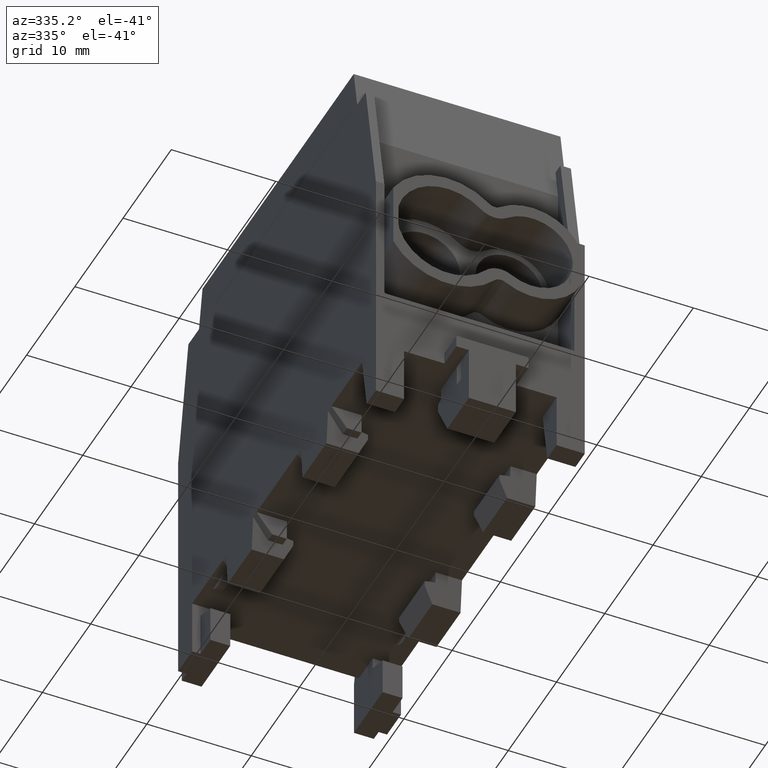
[diagram: clean part render]
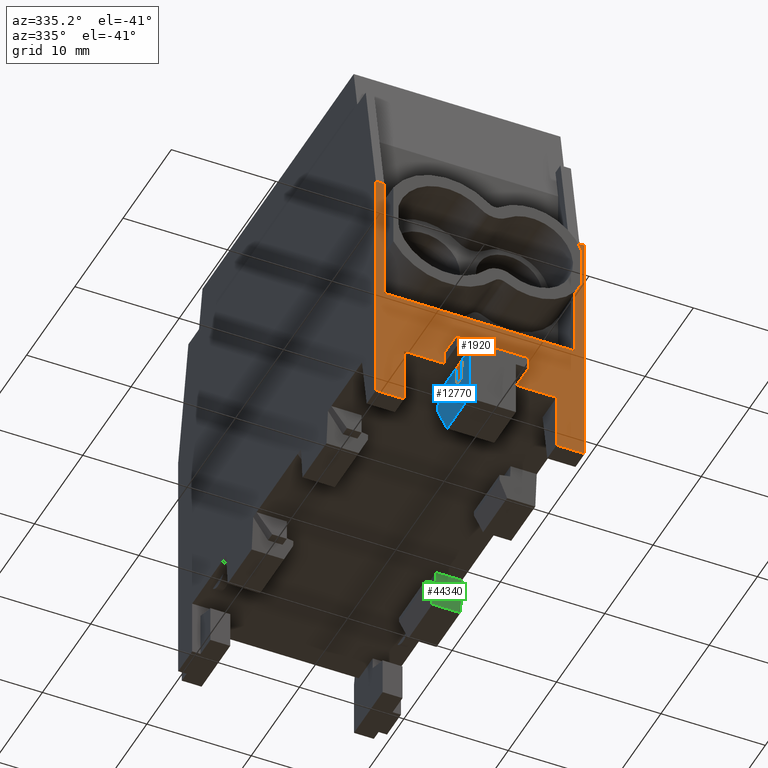
[diagram: same view with three faces highlighted in distinct colors, each labeled with its STEP entity id]
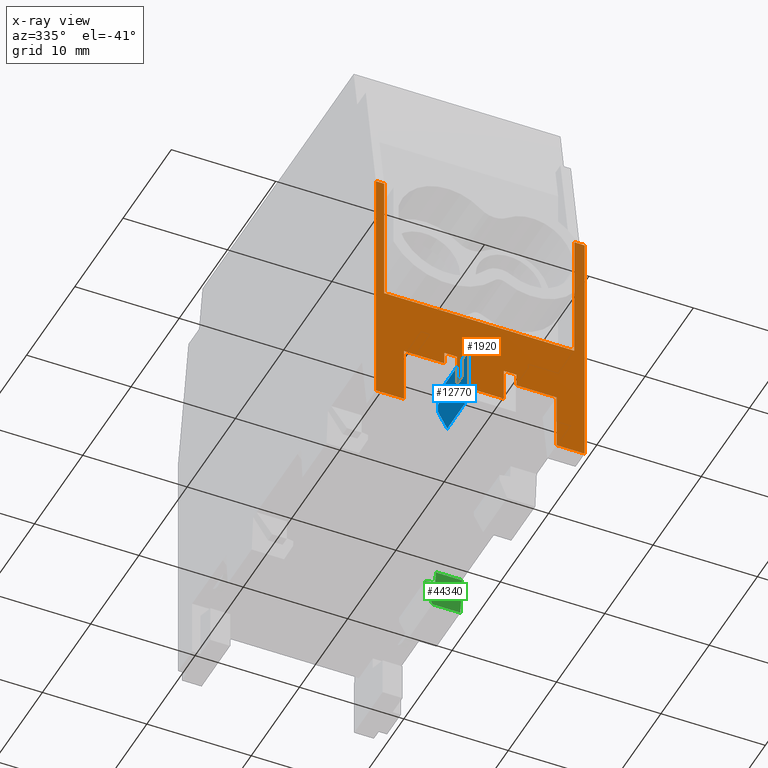
[diagram: x-ray of the same camera — body ghosted, the three highlighted faces saturated]
A machine part, auxiliary view with three faces highlighted in distinct colors.
The next image is the same camera in x-ray (body ghosted, the three faces saturated) — at least one of them is partly hidden behind the body in this view.
Their STEP definitions:

[orange] entity #1920 — the highlighted planar face has unit normal (0, 1, 0).
#10=CARTESIAN_POINT('',(-10.,-20.5,-27.645359338705));
#20=DIRECTION('',(3.24619032168768E-32,1.,3.03396758775072E-16));
#30=DIRECTION('',(5.55111512312577E-17,3.03396758775072E-16,-1.));
#40=AXIS2_PLACEMENT_3D('',#10,#20,#30);
#50=PLANE('',#40);
#60=CARTESIAN_POINT('',(8.99999999999999,-20.5,1.38539416379335E-15));
#70=DIRECTION('',(-5.55111512312577E-17,-3.03396758775072E-16,1.));
#80=VECTOR('',#70,1.);
#90=LINE('',#60,#80);
#100=CARTESIAN_POINT('',(8.99999999999999,-20.5,-23.2252583260273));
#110=VERTEX_POINT('',#100);
#120=CARTESIAN_POINT('',(8.99999999999999,-20.5,-19.2654603513827));
#130=VERTEX_POINT('',#120);
#140=EDGE_CURVE('',#110,#130,#90,.T.);
#150=ORIENTED_EDGE('',*,*,#140,.F.);
#160=CARTESIAN_POINT('',(9.,-20.5,1.38539416379335E-15));
#170=DIRECTION('',(5.55111512312577E-17,3.03396758775072E-16,-1.));
#180=VECTOR('',#170,1.);
#190=LINE('',#160,#180);
#200=CARTESIAN_POINT('',(9.,-20.5,-17.245359338705));
#210=VERTEX_POINT('',#200);
#220=EDGE_CURVE('',#210,#130,#190,.T.);
#230=ORIENTED_EDGE('',*,*,#220,.T.);
#240=CARTESIAN_POINT('',(9.57309750288235E-16,-20.5,-17.245359338705));
#250=DIRECTION('',(1.,-6.13422321364336E-32,9.51899718248728E-17));
#260=VECTOR('',#250,1.);
#270=LINE('',#240,#260);
#280=CARTESIAN_POINT('',(10.,-20.5,-17.245359338705));
#290=VERTEX_POINT('',#280);
#300=EDGE_CURVE('',#210,#290,#270,.T.);
#310=ORIENTED_EDGE('',*,*,#300,.F.);
#320=CARTESIAN_POINT('',(10.,-20.5,1.44090531502461E-15));
#330=DIRECTION('',(-5.55111512312577E-17,-3.03396758775072E-16,1.));
#340=VECTOR('',#330,1.);
#350=LINE('',#320,#340);
#360=CARTESIAN_POINT('',(10.,-20.5,-41.245359338705));
#370=VERTEX_POINT('',#360);
#380=EDGE_CURVE('',#370,#290,#350,.T.);
#390=ORIENTED_EDGE('',*,*,#380,.T.);
#400=CARTESIAN_POINT('',(2.28957737983842E-15,-20.5,-41.245359338705));
#410=DIRECTION('',(1.,-4.93038065763132E-32,5.55111512312577E-17));
#420=VECTOR('',#410,1.);
#430=LINE('',#400,#420);
#440=CARTESIAN_POINT('',(7.3,-20.5,-41.245359338705));
#450=VERTEX_POINT('',#440);
#460=EDGE_CURVE('',#450,#370,#430,.T.);
#470=ORIENTED_EDGE('',*,*,#460,.T.);
#480=CARTESIAN_POINT('',(7.3,-20.5,1.29102520670021E-15));
#490=DIRECTION('',(5.55111512312577E-17,3.03396758775072E-16,-1.));
#500=VECTOR('',#490,1.);
#510=LINE('',#480,#500);
#520=CARTESIAN_POINT('',(7.3,-20.5,-35.745359338705));
#530=VERTEX_POINT('',#520);
#540=EDGE_CURVE('',#530,#450,#510,.T.);
#550=ORIENTED_EDGE('',*,*,#540,.T.);
#560=CARTESIAN_POINT('',(1.9842660480665E-15,-20.5,-35.745359338705));
#570=DIRECTION('',(-1.,4.93038065763132E-32,-5.55111512312577E-17));
#580=VECTOR('',#570,1.);
#590=LINE('',#560,#580);
#600=CARTESIAN_POINT('',(3.45,-20.5,-35.745359338705));
#610=VERTEX_POINT('',#600);
#620=EDGE_CURVE('',#530,#610,#590,.T.);
#630=ORIENTED_EDGE('',*,*,#620,.F.);
#640=CARTESIAN_POINT('',(3.45,-20.5,1.07730727445987E-15));
#650=DIRECTION('',(5.55111512312577E-17,3.03396758775072E-16,-1.));
#660=VECTOR('',#650,1.);
#670=LINE('',#640,#660);
#680=CARTESIAN_POINT('',(3.45,-20.5,-34.545359338705));
#690=VERTEX_POINT('',#680);
#700=EDGE_CURVE('',#690,#610,#670,.T.);
#710=ORIENTED_EDGE('',*,*,#700,.T.);
#720=CARTESIAN_POINT('',(0.,-20.5,-34.545359338705));
#730=DIRECTION('',(1.,-4.62223186652937E-32,5.55111512312577E-17));
#740=VECTOR('',#730,1.);
#750=LINE('',#720,#740);
#760=CARTESIAN_POINT('',(2.25,-20.5,-34.545359338705));
#770=VERTEX_POINT('',#760);
#780=EDGE_CURVE('',#770,#690,#750,.T.);
#790=ORIENTED_EDGE('',*,*,#780,.T.);
#800=CARTESIAN_POINT('',(2.25,-20.5,0.));
#810=DIRECTION('',(2.87126644299654E-19,0.,1.));
#820=VECTOR('',#810,1.);
#830=LINE('',#800,#820);
#840=CARTESIAN_POINT('',(2.25,-20.5,-35.745359338705));
#850=VERTEX_POINT('',#840);
#860=EDGE_CURVE('',#850,#770,#830,.T.);
#870=ORIENTED_EDGE('',*,*,#860,.T.);
#880=CARTESIAN_POINT('',(2.25,-20.5,0.));
#890=DIRECTION('',(5.55111512312577E-17,3.03396758775072E-16,-1.));
#900=VECTOR('',#890,1.);
#910=LINE('',#880,#900);
#920=CARTESIAN_POINT('',(2.25,-20.5,-37.745359338705));
#930=VERTEX_POINT('',#920);
#940=EDGE_CURVE('',#850,#930,#910,.T.);
#950=ORIENTED_EDGE('',*,*,#940,.F.);
#960=CARTESIAN_POINT('',(0.,-20.5,-37.745359338705));
#970=DIRECTION('',(-1.,3.24619032168768E-32,-6.0212043388957E-47));
#980=VECTOR('',#970,1.);
#990=LINE('',#960,#980);
#1000=CARTESIAN_POINT('',(-2.25,-20.5,-37.745359338705));
#1010=VERTEX_POINT('',#1000);
#1020=EDGE_CURVE('',#930,#1010,#990,.T.);
#1030=ORIENTED_EDGE('',*,*,#1020,.F.);
#1040=CARTESIAN_POINT('',(-2.25,-20.5,0.));
#1050=DIRECTION('',(5.55111512312577E-17,3.03396758775072E-16,-1.));
#1060=VECTOR('',#1050,1.);
#1070=LINE('',#1040,#1060);
#1080=CARTESIAN_POINT('',(-2.25,-20.5,-35.745359338705));
#1090=VERTEX_POINT('',#1080);
#1100=EDGE_CURVE('',#1090,#1010,#1070,.T.);
#1110=ORIENTED_EDGE('',*,*,#1100,.T.);
#1120=CARTESIAN_POINT('',(-2.25,-20.5,0.));
#1130=DIRECTION('',(-2.87126644299654E-19,0.,-1.));
#1140=VECTOR('',#1130,1.);
#1150=LINE('',#1120,#1140);
#1160=CARTESIAN_POINT('',(-2.25,-20.5,-34.545359338705));
#1170=VERTEX_POINT('',#1160);
#1180=EDGE_CURVE('',#1170,#1090,#1150,.T.);
#1190=ORIENTED_EDGE('',*,*,#1180,.T.);
#1200=CARTESIAN_POINT('',(-3.45,-20.5,-34.545359338705));
#1210=VERTEX_POINT('',#1200);
#1220=EDGE_CURVE('',#1210,#1170,#750,.T.);
#1230=ORIENTED_EDGE('',*,*,#1220,.T.);
#1240=CARTESIAN_POINT('',(-3.45,-20.5,6.94280330964191E-16));
#1250=DIRECTION('',(-5.55111512312577E-17,-3.03396758775072E-16,1.));
#1260=VECTOR('',#1250,1.);
#1270=LINE('',#1240,#1260);
#1280=CARTESIAN_POINT('',(-3.45,-20.5,-35.745359338705));
#1290=VERTEX_POINT('',#1280);
#1300=EDGE_CURVE('',#1290,#1210,#1270,.T.);
#1310=ORIENTED_EDGE('',*,*,#1300,.T.);
#1320=CARTESIAN_POINT('',(1.9842660480665E-15,-20.5,-35.745359338705));
#1330=DIRECTION('',(-1.,4.93038065763132E-32,-5.55111512312577E-17));
#1340=VECTOR('',#1330,1.);
#1350=LINE('',#1320,#1340);
#1360=CARTESIAN_POINT('',(-7.3,-20.5,-35.745359338705));
#1370=VERTEX_POINT('',#1360);
#1380=EDGE_CURVE('',#1290,#1370,#1350,.T.);
#1390=ORIENTED_EDGE('',*,*,#1380,.F.);
#1400=CARTESIAN_POINT('',(-7.30000000000001,-20.5,4.80562398723848E-16))
;
#1410=DIRECTION('',(-5.55111512312577E-17,-3.03396758775072E-16,1.));
#1420=VECTOR('',#1410,1.);
#1430=LINE('',#1400,#1420);
#1440=CARTESIAN_POINT('',(-7.3,-20.5,-41.245359338705));
#1450=VERTEX_POINT('',#1440);
#1460=EDGE_CURVE('',#1450,#1370,#1430,.T.);
#1470=ORIENTED_EDGE('',*,*,#1460,.T.);
#1480=CARTESIAN_POINT('',(2.28957737983842E-15,-20.5,-41.245359338705));
#1490=DIRECTION('',(-1.,4.93038065763132E-32,-5.55111512312577E-17));
#1500=VECTOR('',#1490,1.);
#1510=LINE('',#1480,#1500);
#1520=CARTESIAN_POINT('',(-10.,-20.5,-41.245359338705));
#1530=VERTEX_POINT('',#1520);
#1540=EDGE_CURVE('',#1450,#1530,#1510,.T.);
#1550=ORIENTED_EDGE('',*,*,#1540,.F.);
#1560=CARTESIAN_POINT('',(-10.,-20.5,3.30682290399453E-16));
#1570=DIRECTION('',(-5.55111512312577E-17,-3.03396758775072E-16,1.));
#1580=VECTOR('',#1570,1.);
#1590=LINE('',#1560,#1580);
#1600=CARTESIAN_POINT('',(-10.,-20.5,-17.145359338705));
#1610=VERTEX_POINT('',#1600);
#1620=EDGE_CURVE('',#1530,#1610,#1590,.T.);
#1630=ORIENTED_EDGE('',*,*,#1620,.F.);
#1640=CARTESIAN_POINT('',(9.5175863516511E-16,-20.5,-17.145359338705));
#1650=DIRECTION('',(-1.,4.93038065763132E-32,-5.55111512312577E-17));
#1660=VECTOR('',#1650,1.);
#1670=LINE('',#1640,#1660);
#1680=CARTESIAN_POINT('',(-9.2,-20.5,-17.145359338705));
#1690=VERTEX_POINT('',#1680);
#1700=EDGE_CURVE('',#1690,#1610,#1670,.T.);
#1710=ORIENTED_EDGE('',*,*,#1700,.T.);
#1720=CARTESIAN_POINT('',(-9.20000000000001,-20.5,3.75091211384459E-16))
;
#1730=DIRECTION('',(-1.66378813762246E-16,-3.03396758775072E-16,1.));
#1740=VECTOR('',#1730,1.);
#1750=LINE('',#1720,#1740);
#1760=CARTESIAN_POINT('',(-9.2,-20.5,-29.745359338705));
#1770=VERTEX_POINT('',#1760);
#1780=EDGE_CURVE('',#1770,#1690,#1750,.T.);
#1790=ORIENTED_EDGE('',*,*,#1780,.T.);
#1800=CARTESIAN_POINT('',(1.65119914067896E-15,-20.5,-29.745359338705));
#1810=DIRECTION('',(-1.,4.93038065763132E-32,-5.55111512312577E-17));
#1820=VECTOR('',#1810,1.);
#1830=LINE('',#1800,#1820);
#1840=CARTESIAN_POINT('',(9.,-20.5,-29.745359338705));
#1850=VERTEX_POINT('',#1840);
#1860=EDGE_CURVE('',#1850,#1770,#1830,.T.);
#1870=ORIENTED_EDGE('',*,*,#1860,.T.);
#1880=EDGE_CURVE('',#110,#1850,#190,.T.);
#1890=ORIENTED_EDGE('',*,*,#1880,.T.);
#1900=EDGE_LOOP('',(#1890,#1870,#1790,#1710,#1630,#1550,#1470,#1390,
#1310,#1230,#1190,#1110,#1030,#950,#870,#790,#710,#630,#550,#470,#390,
#310,#230,#150));
#1910=FACE_OUTER_BOUND('',#1900,.T.);
#1920=ADVANCED_FACE('',(#1910),#50,.F.);

[blue] entity #12770 — the highlighted planar face has unit normal (-1, 0, -0).
#1000=CARTESIAN_POINT('',(-2.25,-20.5,-37.745359338705));
#1010=VERTEX_POINT('',#1000);
#1040=CARTESIAN_POINT('',(-2.25,-20.5,0.));
#1050=DIRECTION('',(5.55111512312577E-17,3.03396758775072E-16,-1.));
#1060=VECTOR('',#1050,1.);
#1070=LINE('',#1040,#1060);
#1080=CARTESIAN_POINT('',(-2.25,-20.5,-35.745359338705));
#1090=VERTEX_POINT('',#1080);
#1100=EDGE_CURVE('',#1090,#1010,#1070,.T.);
#9860=CARTESIAN_POINT('',(-2.25,-18.5,-41.245359338705));
#9870=VERTEX_POINT('',#9860);
#9900=CARTESIAN_POINT('',(-2.25,1.25137083378762E-14,-41.245359338705));
#9910=DIRECTION('',(1.70544636617789E-32,1.,5.80952514931361E-16));
#9920=VECTOR('',#9910,1.);
#9930=LINE('',#9900,#9920);
#9940=CARTESIAN_POINT('',(-2.25,-23.,-41.245359338705));
#9950=VERTEX_POINT('',#9940);
#9960=EDGE_CURVE('',#9950,#9870,#9930,.T.);
#11920=CARTESIAN_POINT('',(-2.25,-20.5,-35.645359338705));
#11930=DIRECTION('',(-1.,4.93038065763132E-32,-5.55111512312577E-17));
#11940=DIRECTION('',(5.55111512312577E-17,3.03396758775072E-16,-1.));
#11950=AXIS2_PLACEMENT_3D('',#11920,#11930,#11940);
#11960=PLANE('',#11950);
#11970=CARTESIAN_POINT('',(-2.25,-23.,2.40181550401967E-18));
#11980=DIRECTION('',(5.55111512312577E-17,3.03396758775072E-16,-1.));
#11990=VECTOR('',#11980,1.);
#12000=LINE('',#11970,#11990);
#12010=CARTESIAN_POINT('',(-2.25,-23.,-35.745359338705));
#12020=VERTEX_POINT('',#12010);
#12030=EDGE_CURVE('',#12020,#9950,#12000,.T.);
#12040=ORIENTED_EDGE('',*,*,#12030,.F.);
#12050=ORIENTED_EDGE('',*,*,#9960,.F.);
#12060=CARTESIAN_POINT('',(-2.25,4.54247769946433,8.35870027815619E-15))
;
#12070=DIRECTION('',(-4.84612992917342E-17,0.487718134381489,
0.873001157728579));
#12080=VECTOR('',#12070,1.);
#12090=LINE('',#12060,#12080);
#12100=CARTESIAN_POINT('',(-2.25,-16.6,-37.8444150580749));
#12110=VERTEX_POINT('',#12100);
#12120=EDGE_CURVE('',#9870,#12110,#12090,.T.);
#12130=ORIENTED_EDGE('',*,*,#12120,.F.);
#12140=CARTESIAN_POINT('',(-2.25,-16.6,1.94414107166448E-15));
#12150=DIRECTION('',(5.55111512312577E-17,3.03396758775072E-16,-1.));
#12160=VECTOR('',#12150,1.);
#12170=LINE('',#12140,#12160);
#12180=CARTESIAN_POINT('',(-2.25,-16.6,-37.0061288541637));
#12190=VERTEX_POINT('',#12180);
#12200=EDGE_CURVE('',#12190,#12110,#12170,.T.);
#12210=ORIENTED_EDGE('',*,*,#12200,.T.);
#12220=CARTESIAN_POINT('',(-2.25,1.25770351630659E-14,-41.4540854485202)
);
#12230=DIRECTION('',(-1.43673431542156E-17,-0.965925826289069,
0.258819045102517));
#12240=VECTOR('',#12230,1.);
#12250=LINE('',#12220,#12240);
#12260=CARTESIAN_POINT('',(-2.25,-17.2,-36.845359338705));
#12270=VERTEX_POINT('',#12260);
#12280=EDGE_CURVE('',#12190,#12270,#12250,.T.);
#12290=ORIENTED_EDGE('',*,*,#12280,.F.);
#12300=CARTESIAN_POINT('',(-2.25,-17.2,1.76210301639944E-15));
#12310=DIRECTION('',(5.55111512312577E-17,3.03396758775072E-16,-1.));
#12320=VECTOR('',#12310,1.);
#12330=LINE('',#12300,#12320);
#12340=CARTESIAN_POINT('',(-2.25,-17.2,-35.745359338705));
#12350=VERTEX_POINT('',#12340);
#12360=EDGE_CURVE('',#12350,#12270,#12330,.T.);
#12370=ORIENTED_EDGE('',*,*,#12360,.T.);
#12380=CARTESIAN_POINT('',(-2.25,0.,-35.745359338705));
#12390=DIRECTION('',(0.,-1.,-5.80952514931361E-16));
#12400=VECTOR('',#12390,1.);
#12410=LINE('',#12380,#12400);
#12420=EDGE_CURVE('',#12350,#1090,#12410,.T.);
#12430=ORIENTED_EDGE('',*,*,#12420,.F.);
#12440=ORIENTED_EDGE('',*,*,#1100,.F.);
#12450=CARTESIAN_POINT('',(-2.25,0.,-37.745359338705));
#12460=DIRECTION('',(0.,-1.,1.73472347597681E-15));
#12470=VECTOR('',#12460,1.);
#12480=LINE('',#12450,#12470);
#12490=CARTESIAN_POINT('',(-2.25,-21.5,-37.745359338705));
#12500=VERTEX_POINT('',#12490);
#12510=EDGE_CURVE('',#1010,#12500,#12480,.T.);
#12520=ORIENTED_EDGE('',*,*,#12510,.F.);
#12530=CARTESIAN_POINT('',(-2.25,-21.5000000000001,0.));
#12540=DIRECTION('',(-5.55111512312576E-17,-1.73472347597681E-15,1.));
#12550=VECTOR('',#12540,1.);
#12560=LINE('',#12530,#12550);
#12570=CARTESIAN_POINT('',(-2.25,-21.5,-36.9453593387049));
#12580=VERTEX_POINT('',#12570);
#12590=EDGE_CURVE('',#12500,#12580,#12560,.T.);
#12600=ORIENTED_EDGE('',*,*,#12590,.F.);
#12610=CARTESIAN_POINT('',(-2.25,-24.5787799448922,0.));
#12620=DIRECTION('',(5.55111512312578E-17,0.0830454798537432,
-0.996545758244879));
#12630=VECTOR('',#12620,1.);
#12640=LINE('',#12610,#12630);
#12650=CARTESIAN_POINT('',(-2.25,-21.6,-35.745359338705));
#12660=VERTEX_POINT('',#12650);
#12670=EDGE_CURVE('',#12660,#12580,#12640,.T.);
#12680=ORIENTED_EDGE('',*,*,#12670,.T.);
#12690=CARTESIAN_POINT('',(-2.25,0.,-35.745359338705));
#12700=DIRECTION('',(0.,-1.,-5.80952514931361E-16));
#12710=VECTOR('',#12700,1.);
#12720=LINE('',#12690,#12710);
#12730=EDGE_CURVE('',#12660,#12020,#12720,.T.);
#12740=ORIENTED_EDGE('',*,*,#12730,.F.);
#12750=EDGE_LOOP('',(#12740,#12680,#12600,#12520,#12440,#12430,#12370,
#12290,#12210,#12130,#12050,#12040));
#12760=FACE_OUTER_BOUND('',#12750,.T.);
#12770=ADVANCED_FACE('',(#12760),#11960,.T.);

[green] entity #44340 — the highlighted planar face has unit normal (-0, -0.9962, -0.0872).
#40090=CARTESIAN_POINT('',(10.,5.25611963054814,-39.245359338705));
#40100=VERTEX_POINT('',#40090);
#40130=CARTESIAN_POINT('',(10.,1.82259559241017,0.));
#40140=DIRECTION('',(-5.55111512312578E-17,-0.0871557427476589,
0.996194698091746));
#40150=VECTOR('',#40140,1.);
#40160=LINE('',#40130,#40150);
#40170=CARTESIAN_POINT('',(10.,4.9499093082074,-35.745359338705));
#40180=VERTEX_POINT('',#40170);
#40190=EDGE_CURVE('',#40100,#40180,#40160,.T.);
#43560=CARTESIAN_POINT('',(7.5,5.04614683808592,-36.845359338705));
#43570=DIRECTION('',(-1.76721111597388E-16,-0.087155742747659,
0.996194698091746));
#43580=VECTOR('',#43570,1.);
#43590=LINE('',#43560,#43580);
#43600=CARTESIAN_POINT('',(7.5,5.04614683808592,-36.845359338705));
#43610=VERTEX_POINT('',#43600);
#43620=CARTESIAN_POINT('',(7.5,4.9499093082074,-35.745359338705));
#43630=VERTEX_POINT('',#43620);
#43640=EDGE_CURVE('',#43610,#43630,#43590,.T.);
#43890=CARTESIAN_POINT('',(7.5,4.25,-27.745359338705));
#43900=DIRECTION('',(-2.71661457091403E-16,-0.996194698091746,
-0.0871557427476589));
#43910=DIRECTION('',(7.94904926232374E-17,0.0871557427476589,
-0.996194698091746));
#43920=AXIS2_PLACEMENT_3D('',#43890,#43900,#43910);
#43930=PLANE('',#43920);
#43940=CARTESIAN_POINT('',(0.,5.25611963054813,-39.2453593387049));
#43950=DIRECTION('',(1.,6.10545446523883E-16,-1.00955320455483E-14));
#43960=VECTOR('',#43950,1.);
#43970=LINE('',#43940,#43960);
#43980=CARTESIAN_POINT('',(7.3037619290508,5.25611963054814,
-39.245359338705));
#43990=VERTEX_POINT('',#43980);
#44000=EDGE_CURVE('',#43990,#40100,#43970,.T.);
#44010=ORIENTED_EDGE('',*,*,#44000,.T.);
#44020=CARTESIAN_POINT('',(-10.9966496776322,1.82259559241017,
7.04796026960378E-15));
#44030=DIRECTION('',(0.421295957875004,0.0790435663209857,
-0.903472097245644));
#44040=VECTOR('',#44030,1.);
#44050=LINE('',#44020,#44040);
#44060=CARTESIAN_POINT('',(6.5,5.10531778173463,-37.5216863194134));
#44070=VERTEX_POINT('',#44060);
#44080=EDGE_CURVE('',#44070,#43990,#44050,.T.);
#44090=ORIENTED_EDGE('',*,*,#44080,.T.);
#44100=CARTESIAN_POINT('',(6.5,5.10531778173462,-37.5216863194134));
#44110=DIRECTION('',(-7.94904926232374E-17,-0.0871557427476592,
0.996194698091746));
#44120=VECTOR('',#44110,1.);
#44130=LINE('',#44100,#44120);
#44140=CARTESIAN_POINT('',(6.5,5.06157344997166,-37.0216863194134));
#44150=VERTEX_POINT('',#44140);
#44160=EDGE_CURVE('',#44070,#44150,#44130,.T.);
#44170=ORIENTED_EDGE('',*,*,#44160,.F.);
#44180=CARTESIAN_POINT('',(7.5,5.04614683808592,-36.845359338705));
#44190=DIRECTION('',(-0.984694123715651,0.0151904940727358,
-0.173628141756145));
#44200=VECTOR('',#44190,1.);
#44210=LINE('',#44180,#44200);
#44220=EDGE_CURVE('',#43610,#44150,#44210,.T.);
#44230=ORIENTED_EDGE('',*,*,#44220,.T.);
#44240=ORIENTED_EDGE('',*,*,#43640,.F.);
#44250=CARTESIAN_POINT('',(1.9842660480665E-15,4.9499093082074,
-35.745359338705));
#44260=DIRECTION('',(1.,-2.77555756156289E-16,5.55111512312576E-17));
#44270=VECTOR('',#44260,1.);
#44280=LINE('',#44250,#44270);
#44290=EDGE_CURVE('',#43630,#40180,#44280,.T.);
#44300=ORIENTED_EDGE('',*,*,#44290,.F.);
#44310=ORIENTED_EDGE('',*,*,#40190,.T.);
#44320=EDGE_LOOP('',(#44310,#44300,#44240,#44230,#44170,#44090,#44010));
#44330=FACE_OUTER_BOUND('',#44320,.T.);
#44340=ADVANCED_FACE('',(#44330),#43930,.T.);